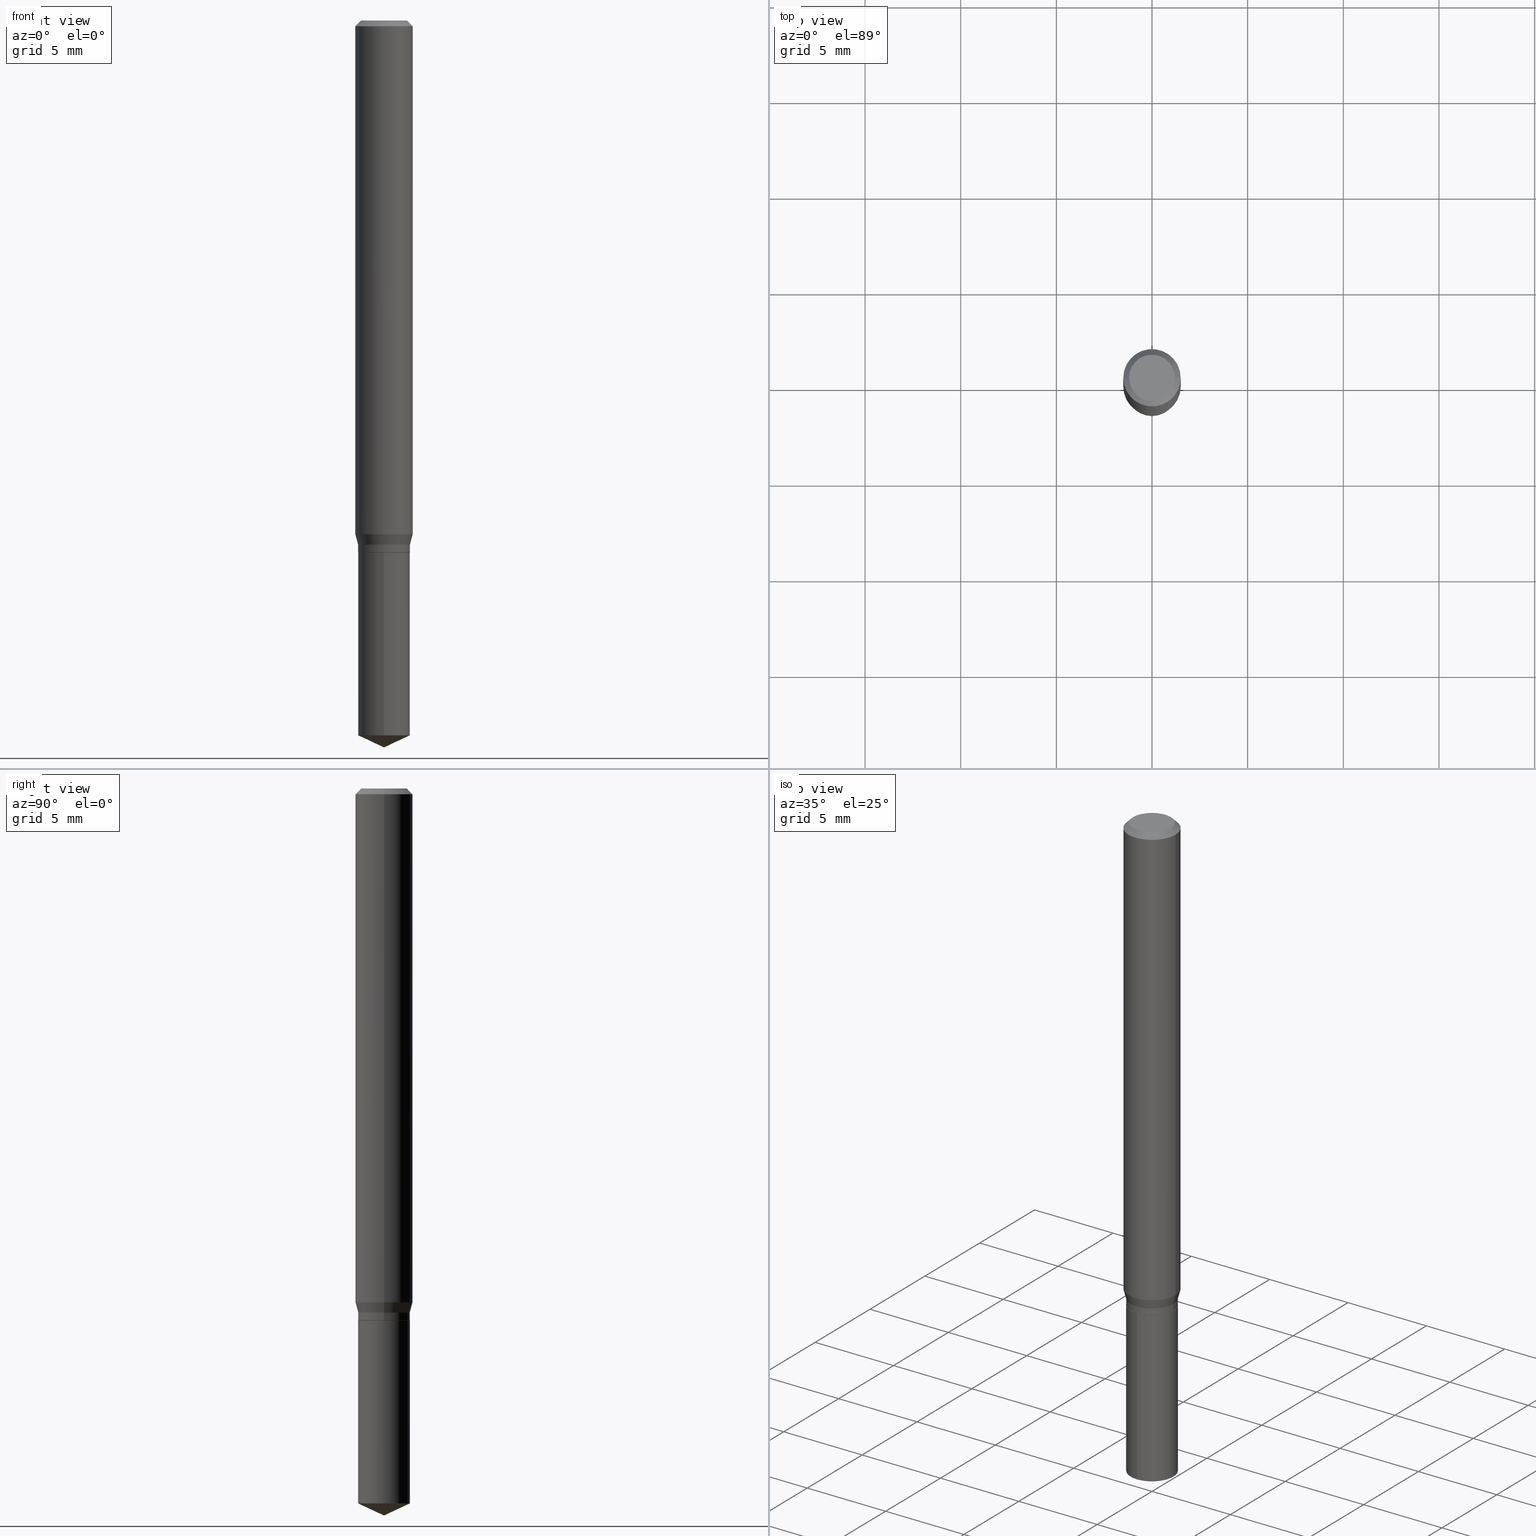
[diagram: canonical four-view strip — front | top / right | iso, engineering-drawing reading convention]
A machine part, canonical four-view strip (front | top / right | iso — engineering-drawing reading convention). The complete STEP part file that produces these views, byte-faithful:
ISO-10303-21;
HEADER;
FILE_DESCRIPTION (( 'STEP AP203' ),
    '1' );
FILE_NAME ('08030.STEP',
    '2024-04-24T09:21:03',
    ( '' ),
    ( '' ),
    'SwSTEP 2.0',
    'SolidWorks 2023',
    '' );
FILE_SCHEMA (( 'CONFIG_CONTROL_DESIGN' ));
ENDSEC;

DATA;
#1 = LINE ( 'NONE', #45, #212 ) ;
#2 = EDGE_CURVE ( 'NONE', #93, #392, #249, .T. ) ;
#3 = PERSON_AND_ORGANIZATION ( #308, #431 ) ;
#4 = LINE ( 'NONE', #183, #369 ) ;
#5 = AXIS2_PLACEMENT_3D ( 'NONE', #222, #178, #218 ) ;
#6 = CALENDAR_DATE ( 2024, 24, 4 ) ;
#7 = DIRECTION ( 'NONE',  ( -2.445468806185136597E-29, 3.491481338843145583E-15, 1.000000000000000000 ) ) ;
#8 = VERTEX_POINT ( 'NONE', #19 ) ;
#9 = APPROVAL_ROLE ( '' ) ;
#10 = CARTESIAN_POINT ( 'NONE',  ( 3.790745495280494029E-16, 0.05334999999999485987, -1.471222486437431476 ) ) ;
#11 = CARTESIAN_POINT ( 'NONE',  ( 0.000000000000000000, 0.000000000000000000, 0.000000000000000000 ) ) ;
#12 = DIRECTION ( 'NONE',  ( -6.982962677686265133E-15, -1.000000000000000000, 2.560307397998372008E-15 ) ) ;
#13 = ADVANCED_FACE ( 'NONE', ( #235 ), #50, .T. ) ;
#14 = AXIS2_PLACEMENT_3D ( 'NONE', #197, #355, #160 ) ;
#15 = DIRECTION ( 'NONE',  ( -2.445468806185136597E-29, 3.491481338843145583E-15, 1.000000000000000000 ) ) ;
#16 = AXIS2_PLACEMENT_3D ( 'NONE', #367, #170, #321 ) ;
#17 = AXIS2_PLACEMENT_3D ( 'NONE', #201, #283, #206 ) ;
#18 = CARTESIAN_POINT ( 'NONE',  ( 2.637438107470669995E-29, -3.765562623942332293E-15, -1.078500000000000014 ) ) ;
#19 = CARTESIAN_POINT ( 'NONE',  ( 0.05904999999999999832, -4.535783407291118600E-16, -0.01181000000000007044 ) ) ;
#20 = CC_DESIGN_PERSON_AND_ORGANIZATION_ASSIGNMENT ( #314, #305, ( #404 ) ) ;
#21 = PLANE ( 'NONE',  #219 ) ;
#22 = EDGE_LOOP ( 'NONE', ( #394, #117, #424, #457 ) ) ;
#23 = CIRCLE ( 'NONE', #113, 0.05285000000000000114 ) ;
#24 = VECTOR ( 'NONE', #28, 39.37007874015748143 ) ;
#25 =( NAMED_UNIT ( * ) PLANE_ANGLE_UNIT ( ) SI_UNIT ( $, .RADIAN. ) );
#26 = CARTESIAN_POINT ( 'NONE',  ( 2.888098660104663766E-31, -4.123439461173779647E-17, -0.01181000000000007044 ) ) ;
#27 = ORIENTED_EDGE ( 'NONE', *, *, #338, .F. ) ;
#28 = DIRECTION ( 'NONE',  ( -2.445468806185136877E-29, 3.491481338843145188E-15, 1.000000000000000000 ) ) ;
#29 = DIRECTION ( 'NONE',  ( -2.445458899330790108E-29, 3.491495526022433205E-15, 1.000000000000000000 ) ) ;
#30 = DATE_AND_TIME ( #171, #114 ) ;
#31 = EDGE_CURVE ( 'NONE', #309, #8, #343, .T. ) ;
#32 = CYLINDRICAL_SURFACE ( 'NONE', #279, 0.05905000000000006771 ) ;
#33 = PRODUCT ( '08030', '08030', '', ( #348 ) ) ;
#34 = ORIENTED_EDGE ( 'NONE', *, *, #73, .T. ) ;
#35 = CC_DESIGN_APPROVAL ( #87, ( #374 ) ) ;
#36 = DIRECTION ( 'NONE',  ( -2.445468806185136597E-29, 3.491481338843145583E-15, 1.000000000000000000 ) ) ;
#37 = EDGE_CURVE ( 'NONE', #115, #93, #274, .T. ) ;
#38 = EDGE_CURVE ( 'NONE', #359, #228, #258, .T. ) ;
#39 = DIRECTION ( 'NONE',  ( -1.000000000000000000, 6.982962677686266711E-15, 0.000000000000000000 ) ) ;
#40 = VECTOR ( 'NONE', #397, 39.37007874015748143 ) ;
#41 =( GEOMETRIC_REPRESENTATION_CONTEXT ( 3 ) GLOBAL_UNCERTAINTY_ASSIGNED_CONTEXT ( ( #446 ) ) GLOBAL_UNIT_ASSIGNED_CONTEXT ( ( #89, #25, #242 ) ) REPRESENTATION_CONTEXT ( 'NONE', 'WORKASPACE' ) );
#42 = CARTESIAN_POINT ( 'NONE',  ( -0.05904999999999999832, -1.446686424422506583E-15, -0.01181000000000007044 ) ) ;
#43 = ADVANCED_FACE ( 'NONE', ( #316 ), #224, .T. ) ;
#44 = APPROVAL_ROLE ( '' ) ;
#45 = CARTESIAN_POINT ( 'NONE',  ( 0.05285000000000000114, -4.190475902879542038E-15, -1.094500000000000028 ) ) ;
#46 = CIRCLE ( 'NONE', #174, 0.05904999999999999832 ) ;
#47 = FACE_OUTER_BOUND ( 'NONE', #138, .T. ) ;
#48 = AXIS2_PLACEMENT_3D ( 'NONE', #267, #7, #271 ) ;
#49 = DIRECTION ( 'NONE',  ( -2.445468806185136597E-29, 3.491481338843145583E-15, 1.000000000000000000 ) ) ;
#50 = CYLINDRICAL_SURFACE ( 'NONE', #412, 0.05335000000000000159 ) ;
#51 = VERTEX_POINT ( 'NONE', #65 ) ;
#52 = DIRECTION ( 'NONE',  ( -2.445468806185136597E-29, 3.491481338843145583E-15, 1.000000000000000000 ) ) ;
#53 = APPLICATION_CONTEXT ( 'configuration controlled 3d designs of mechanical parts and assemblies' ) ;
#54 = EDGE_LOOP ( 'NONE', ( #121, #386, #130, #167 ) ) ;
#55 = DIRECTION ( 'NONE',  ( -0.2588190451025213501, 5.211531920934551042E-15, 0.9659258262890682012 ) ) ;
#56 = CONICAL_SURFACE ( 'NONE', #488, 0.05904999999999999832, 0.7853981633974452814 ) ;
#57 = DATE_AND_TIME ( #479, #281 ) ;
#58 = CARTESIAN_POINT ( 'NONE',  ( 2.675342873966538993E-29, -3.819680584694400481E-15, -1.093999999999999861 ) ) ;
#59 = ADVANCED_FACE ( 'NONE', ( #176 ), #486, .T. ) ;
#60 = CARTESIAN_POINT ( 'NONE',  ( 0.000000000000000000, 0.000000000000000000, 0.000000000000000000 ) ) ;
#61 = ORIENTED_EDGE ( 'NONE', *, *, #196, .F. ) ;
#62 = CYLINDRICAL_SURFACE ( 'NONE', #450, 0.05335000000000000159 ) ;
#63 = AXIS2_PLACEMENT_3D ( 'NONE', #391, #461, #312 ) ;
#64 = AXIS2_PLACEMENT_3D ( 'NONE', #131, #440, #436 ) ;
#65 = CARTESIAN_POINT ( 'NONE',  ( 3.790745495280493536E-16, 0.05334999999999616438, -1.094500000000000028 ) ) ;
#66 = ORIENTED_EDGE ( 'NONE', *, *, #38, .T. ) ;
#67 = CARTESIAN_POINT ( 'NONE',  ( 0.05335000000000000159, -3.725410588545623708E-16, 2.601440309887131706E-30 ) ) ;
#68 = ORIENTED_EDGE ( 'NONE', *, *, #411, .T. ) ;
#69 = DIRECTION ( 'NONE',  ( -2.445468806185136597E-29, 3.491481338843145583E-15, 1.000000000000000000 ) ) ;
#70 = EDGE_LOOP ( 'NONE', ( #349, #470, #177, #318 ) ) ;
#71 = CLOSED_SHELL ( 'NONE', ( #173, #43, #151, #59, #13, #94, #347, #146, #295, #301, #275, #185 ) ) ;
#72 = AXIS2_PLACEMENT_3D ( 'NONE', #437, #444, #172 ) ;
#73 = EDGE_CURVE ( 'NONE', #8, #309, #46, .T. ) ;
#74 = DIRECTION ( 'NONE',  ( 2.445468806185136597E-29, -3.491481338843145583E-15, -1.000000000000000000 ) ) ;
#75 = FACE_OUTER_BOUND ( 'NONE', #288, .T. ) ;
#76 = CARTESIAN_POINT ( 'NONE',  ( -3.725410588545263790E-16, -0.05335000000000515025, -1.471222486437430810 ) ) ;
#77 = APPROVAL_STATUS ( 'not_yet_approved' ) ;
#78 = CARTESIAN_POINT ( 'NONE',  ( 2.676565608369631794E-29, -3.821426325363822773E-15, -1.094499999999999806 ) ) ;
#79 = CARTESIAN_POINT ( 'NONE',  ( 0.000000000000000000, 0.000000000000000000, 0.000000000000000000 ) ) ;
#80 = AXIS2_PLACEMENT_3D ( 'NONE', #304, #52, #384 ) ;
#81 = ORIENTED_EDGE ( 'NONE', *, *, #99, .T. ) ;
#82 = CC_DESIGN_PERSON_AND_ORGANIZATION_ASSIGNMENT ( #266, #415, ( #374 ) ) ;
#83 = COORDINATED_UNIVERSAL_TIME_OFFSET ( 5, 0, .BEHIND. ) ;
#84 = CARTESIAN_POINT ( 'NONE',  ( -3.725410588545355495E-16, -0.05335000000000382492, -1.094499999999999806 ) ) ;
#85 = DIRECTION ( 'NONE',  ( -0.7071067811865453523, 2.468850131082234184E-15, -0.7071067811865496822 ) ) ;
#86 = ORIENTED_EDGE ( 'NONE', *, *, #38, .F. ) ;
#87 = APPROVAL ( #248, 'UNSPECIFIED' ) ;
#88 = ORIENTED_EDGE ( 'NONE', *, *, #460, .F. ) ;
#89 =( CONVERSION_BASED_UNIT ( 'INCH', #280 ) LENGTH_UNIT ( ) NAMED_UNIT ( #162 ) );
#90 = DIRECTION ( 'NONE',  ( -2.445468806185136597E-29, 3.491481338843145583E-15, 1.000000000000000000 ) ) ;
#91 = ORIENTED_EDGE ( 'NONE', *, *, #99, .F. ) ;
#92 = DIRECTION ( 'NONE',  ( 1.000000000000000000, -6.982962677686267499E-15, 4.876176775795935793E-29 ) ) ;
#93 = VERTEX_POINT ( 'NONE', #323 ) ;
#94 = ADVANCED_FACE ( 'NONE', ( #366 ), #475, .T. ) ;
#95 = AXIS2_PLACEMENT_3D ( 'NONE', #299, #265, #448 ) ;
#96 = CC_DESIGN_APPROVAL ( #108, ( #408 ) ) ;
#97 = FACE_OUTER_BOUND ( 'NONE', #236, .T. ) ;
#98 = EDGE_LOOP ( 'NONE', ( #421, #190, #81, #241 ) ) ;
#99 = EDGE_CURVE ( 'NONE', #209, #445, #333, .T. ) ;
#100 = LINE ( 'NONE', #211, #413 ) ;
#101 = EDGE_CURVE ( 'NONE', #332, #51, #100, .T. ) ;
#102 = AXIS2_PLACEMENT_3D ( 'NONE', #483, #330, #140 ) ;
#103 = CARTESIAN_POINT ( 'NONE',  ( 2.675342873966538993E-29, -3.819680584694400481E-15, -1.093999999999999861 ) ) ;
#104 = EDGE_CURVE ( 'NONE', #240, #332, #285, .T. ) ;
#105 = PERSON_AND_ORGANIZATION ( #308, #431 ) ;
#106 = ADVANCED_FACE ( 'NONE', ( #208 ), #21, .F. ) ;
#107 = CARTESIAN_POINT ( 'NONE',  ( 3.597824965406070746E-29, -5.136751201312159950E-15, -1.471222486437431254 ) ) ;
#108 = APPROVAL ( #390, 'UNSPECIFIED' ) ;
#109 = ORIENTED_EDGE ( 'NONE', *, *, #354, .F. ) ;
#110 = ORIENTED_EDGE ( 'NONE', *, *, #417, .T. ) ;
#111 = PERSON_AND_ORGANIZATION_ROLE ( 'creator' ) ;
#112 = DIRECTION ( 'NONE',  ( -2.445458899330790108E-29, 3.491495526022433205E-15, 1.000000000000000000 ) ) ;
#113 = AXIS2_PLACEMENT_3D ( 'NONE', #353, #120, #227 ) ;
#114 = LOCAL_TIME ( 5, 21, 3.000000000000000000, #399 ) ;
#115 = VERTEX_POINT ( 'NONE', #164 ) ;
#116 = CARTESIAN_POINT ( 'NONE',  ( -0.05335000000000000159, 3.790745495280134604E-16, -2.624251870650992415E-30 ) ) ;
#117 = ORIENTED_EDGE ( 'NONE', *, *, #255, .T. ) ;
#118 = ADVANCED_FACE ( 'NONE', ( #126 ), #62, .T. ) ;
#119 = PERSON_AND_ORGANIZATION_ROLE ( 'design_supplier' ) ;
#120 = DIRECTION ( 'NONE',  ( -2.445468806185136597E-29, 3.491481338843145583E-15, 1.000000000000000000 ) ) ;
#121 = ORIENTED_EDGE ( 'NONE', *, *, #354, .T. ) ;
#122 = ORIENTED_EDGE ( 'NONE', *, *, #203, .T. ) ;
#123 = CONICAL_SURFACE ( 'NONE', #430, 0.05285000000000000114, 0.7853981633972775267 ) ;
#124 = APPROVAL_PERSON_ORGANIZATION ( #234, #473, #9 ) ;
#125 = EDGE_LOOP ( 'NONE', ( #86, #389, #34, #478 ) ) ;
#126 = FACE_OUTER_BOUND ( 'NONE', #292, .T. ) ;
#127 = PERSON_AND_ORGANIZATION ( #308, #431 ) ;
#128 = CC_DESIGN_PERSON_AND_ORGANIZATION_ASSIGNMENT ( #105, #111, ( #408 ) ) ;
#129 = DIRECTION ( 'NONE',  ( -2.445468806185136597E-29, 3.491481338843145583E-15, 1.000000000000000000 ) ) ;
#130 = ORIENTED_EDGE ( 'NONE', *, *, #477, .F. ) ;
#131 = CARTESIAN_POINT ( 'NONE',  ( 8.265746106709734507E-48, -1.180129479067563789E-33, -3.380025165646692144E-19 ) ) ;
#132 = CLOSED_SHELL ( 'NONE', ( #435, #362, #300, #118, #106 ) ) ;
#133 = CIRCLE ( 'NONE', #149, 0.05335000000000000159 ) ;
#134 = ORIENTED_EDGE ( 'NONE', *, *, #340, .F. ) ;
#135 = CIRCLE ( 'NONE', #214, 0.05335000000000000159 ) ;
#136 = DIRECTION ( 'NONE',  ( 6.439704144417044553E-15, 0.9063077870366541555, 0.4226182617406904485 ) ) ;
#137 = FACE_OUTER_BOUND ( 'NONE', #432, .T. ) ;
#138 = EDGE_LOOP ( 'NONE', ( #207, #193, #169, #396 ) ) ;
#139 = EDGE_CURVE ( 'NONE', #294, #51, #194, .T. ) ;
#140 = DIRECTION ( 'NONE',  ( 1.000000000000000000, -6.982962677686267499E-15, 0.000000000000000000 ) ) ;
#141 = ORIENTED_EDGE ( 'NONE', *, *, #196, .T. ) ;
#142 = FACE_OUTER_BOUND ( 'NONE', #70, .T. ) ;
#143 = VECTOR ( 'NONE', #55, 39.37007874015747433 ) ;
#144 = AXIS2_PLACEMENT_3D ( 'NONE', #78, #231, #187 ) ;
#145 = PLANE ( 'NONE',  #95 ) ;
#146 = ADVANCED_FACE ( 'NONE', ( #326 ), #32, .T. ) ;
#147 = LINE ( 'NONE', #84, #259 ) ;
#148 = EDGE_CURVE ( 'NONE', #228, #359, #350, .T. ) ;
#149 = AXIS2_PLACEMENT_3D ( 'NONE', #376, #257, #407 ) ;
#150 = LOCAL_TIME ( 5, 21, 3.000000000000000000, #226 ) ;
#151 = ADVANCED_FACE ( 'NONE', ( #97 ), #401, .T. ) ;
#152 = DATE_AND_TIME ( #6, #439 ) ;
#153 = APPROVAL_DATE_TIME ( #419, #473 ) ;
#154 = CARTESIAN_POINT ( 'NONE',  ( -9.261924752013118283E-28, 1.322368428517963298E-13, 37.87397874015748300 ) ) ;
#155 = DIRECTION ( 'NONE',  ( -2.445468806185136597E-29, 3.491481338843145583E-15, 1.000000000000000000 ) ) ;
#156 = ORIENTED_EDGE ( 'NONE', *, *, #289, .T. ) ;
#157 = CARTESIAN_POINT ( 'NONE',  ( 0.05335000000000000159, -4.138103682796894565E-15, -1.078500000000000014 ) ) ;
#158 = VECTOR ( 'NONE', #428, 39.37007874015748143 ) ;
#159 = AXIS2_PLACEMENT_3D ( 'NONE', #79, #191, #379 ) ;
#160 = DIRECTION ( 'NONE',  ( 1.000000000000000000, -6.982962677686266711E-15, 4.876185090822587894E-29 ) ) ;
#161 = EDGE_LOOP ( 'NONE', ( #68, #251, #109, #91 ) ) ;
#162 = DIMENSIONAL_EXPONENTS ( 1.000000000000000000, 0.000000000000000000, 0.000000000000000000, 0.000000000000000000, 0.000000000000000000, 0.000000000000000000, 0.000000000000000000 ) ;
#163 = ORIENTED_EDGE ( 'NONE', *, *, #2, .F. ) ;
#164 = CARTESIAN_POINT ( 'NONE',  ( -0.05335000000000000159, -3.413547054790353271E-15, -1.078500000000000014 ) ) ;
#165 = AXIS2_PLACEMENT_3D ( 'NONE', #490, #372, #335 ) ;
#166 = APPROVAL_PERSON_ORGANIZATION ( #127, #87, #325 ) ;
#167 = ORIENTED_EDGE ( 'NONE', *, *, #289, .F. ) ;
#168 = CC_DESIGN_PERSON_AND_ORGANIZATION_ASSIGNMENT ( #352, #119, ( #408 ) ) ;
#169 = ORIENTED_EDGE ( 'NONE', *, *, #139, .F. ) ;
#170 = DIRECTION ( 'NONE',  ( -2.445458899330790108E-29, 3.491495526022433205E-15, 1.000000000000000000 ) ) ;
#171 = CALENDAR_DATE ( 2024, 24, 4 ) ;
#172 = DIRECTION ( 'NONE',  ( 1.000000000000000000, -6.982962677686268288E-15, 0.000000000000000000 ) ) ;
#173 = ADVANCED_FACE ( 'NONE', ( #256 ), #447, .T. ) ;
#174 = AXIS2_PLACEMENT_3D ( 'NONE', #26, #69, #291 ) ;
#175 = VERTEX_POINT ( 'NONE', #481 ) ;
#176 = FACE_OUTER_BOUND ( 'NONE', #54, .T. ) ;
#177 = ORIENTED_EDGE ( 'NONE', *, *, #371, .T. ) ;
#178 = DIRECTION ( 'NONE',  ( -2.438088387897960049E-29, 3.491481338843145188E-15, 1.000000000000000000 ) ) ;
#179 = FACE_OUTER_BOUND ( 'NONE', #245, .T. ) ;
#180 = AXIS2_PLACEMENT_3D ( 'NONE', #268, #15, #385 ) ;
#181 = AXIS2_PLACEMENT_3D ( 'NONE', #18, #49, #315 ) ;
#182 = CARTESIAN_POINT ( 'NONE',  ( -0.05905000000000006771, 4.195754854663396409E-16, -2.904631170795525045E-30 ) ) ;
#183 = CARTESIAN_POINT ( 'NONE',  ( 3.658651059288795076E-29, -5.223626456482161457E-15, -1.496099999999999985 ) ) ;
#184 = DIRECTION ( 'NONE',  ( 1.000000000000000000, -6.982962677686268288E-15, 0.000000000000000000 ) ) ;
#185 = ADVANCED_FACE ( 'NONE', ( #137 ), #123, .T. ) ;
#186 = PERSON_AND_ORGANIZATION_ROLE ( 'design_owner' ) ;
#187 = DIRECTION ( 'NONE',  ( -6.982962677686265133E-15, -1.000000000000000000, 2.560307397998372008E-15 ) ) ;
#188 = ORIENTED_EDGE ( 'NONE', *, *, #255, .F. ) ;
#189 = DIRECTION ( 'NONE',  ( -2.445458899330790108E-29, 3.491495526022433205E-15, 1.000000000000000000 ) ) ;
#190 = ORIENTED_EDGE ( 'NONE', *, *, #278, .T. ) ;
#191 = DIRECTION ( 'NONE',  ( 0.000000000000000000, 0.000000000000000000, 1.000000000000000000 ) ) ;
#192 = DIRECTION ( 'NONE',  ( -2.445458899330790108E-29, 3.491495526022433205E-15, 1.000000000000000000 ) ) ;
#193 = ORIENTED_EDGE ( 'NONE', *, *, #101, .T. ) ;
#194 = CIRCLE ( 'NONE', #16, 0.05335000000000000159 ) ;
#195 = FACE_OUTER_BOUND ( 'NONE', #233, .T. ) ;
#196 = EDGE_CURVE ( 'NONE', #93, #309, #395, .T. ) ;
#197 = CARTESIAN_POINT ( 'NONE',  ( 8.265746106709734507E-48, -1.180129479067563789E-33, -3.380025165646692144E-19 ) ) ;
#198 = EDGE_LOOP ( 'NONE', ( #61, #402, #232, #269 ) ) ;
#199 = APPROVAL_DATE_TIME ( #57, #87 ) ;
#200 = ORIENTED_EDGE ( 'NONE', *, *, #243, .T. ) ;
#201 = CARTESIAN_POINT ( 'NONE',  ( 3.597824965406070746E-29, -5.136751201312159950E-15, -1.471222486437431254 ) ) ;
#202 = ORIENTED_EDGE ( 'NONE', *, *, #101, .F. ) ;
#203 = EDGE_CURVE ( 'NONE', #482, #240, #4, .T. ) ;
#204 = CARTESIAN_POINT ( 'NONE',  ( 0.000000000000000000, 0.000000000000000000, 0.000000000000000000 ) ) ;
#205 = VECTOR ( 'NONE', #459, 39.37007874015748143 ) ;
#206 = DIRECTION ( 'NONE',  ( -6.982962677686265133E-15, -1.000000000000000000, 5.120614795996744016E-15 ) ) ;
#207 = ORIENTED_EDGE ( 'NONE', *, *, #104, .T. ) ;
#208 = FACE_OUTER_BOUND ( 'NONE', #456, .T. ) ;
#209 = VERTEX_POINT ( 'NONE', #339 ) ;
#210 =( LENGTH_UNIT ( ) NAMED_UNIT ( * ) SI_UNIT ( $, .METRE. ) );
#211 = CARTESIAN_POINT ( 'NONE',  ( 3.790745495280401338E-16, 0.05334999999999617826, -1.094500000000000028 ) ) ;
#212 = VECTOR ( 'NONE', #409, 39.37007874015748143 ) ;
#213 = ORIENTED_EDGE ( 'NONE', *, *, #139, .T. ) ;
#214 = AXIS2_PLACEMENT_3D ( 'NONE', #387, #192, #12 ) ;
#215 = CARTESIAN_POINT ( 'NONE',  ( -0.04724000000000000421, 3.504923541997677355E-16, -3.380025165670481712E-19 ) ) ;
#216 = DIRECTION ( 'NONE',  ( -6.328713451373389100E-15, -0.9063077870366512689, 0.4226182617406967768 ) ) ;
#217 = ADVANCED_BREP_SHAPE_REPRESENTATION ( '08030', ( #414, #254, #159 ), #41 ) ;
#218 = DIRECTION ( 'NONE',  ( 1.000000000000000000, -6.982962677686265922E-15, 4.876176775795935793E-29 ) ) ;
#219 = AXIS2_PLACEMENT_3D ( 'NONE', #370, #250, #398 ) ;
#220 = CIRCLE ( 'NONE', #422, 0.05905000000000013016 ) ;
#221 = CARTESIAN_POINT ( 'NONE',  ( 2.888098660104663766E-31, -4.123439461173779647E-17, -0.01181000000000007044 ) ) ;
#222 = CARTESIAN_POINT ( 'NONE',  ( 7.012475686570645720E-30, -6.650194186352977832E-15, -1.094500000000000028 ) ) ;
#223 = LINE ( 'NONE', #345, #158 ) ;
#224 = CONICAL_SURFACE ( 'NONE', #420, 0.05904999999999999832, 0.7853981633974452814 ) ;
#225 = CIRCLE ( 'NONE', #382, 0.05335000000000000159 ) ;
#226 = COORDINATED_UNIVERSAL_TIME_OFFSET ( 5, 0, .BEHIND. ) ;
#227 = DIRECTION ( 'NONE',  ( 1.000000000000000000, -6.982962677686267499E-15, 0.000000000000000000 ) ) ;
#228 = VERTEX_POINT ( 'NONE', #215 ) ;
#229 = ORIENTED_EDGE ( 'NONE', *, *, #400, .F. ) ;
#230 = CALENDAR_DATE ( 2024, 24, 4 ) ;
#231 = DIRECTION ( 'NONE',  ( -2.445458899330790108E-29, 3.491495526022433205E-15, 1.000000000000000000 ) ) ;
#232 = ORIENTED_EDGE ( 'NONE', *, *, #400, .T. ) ;
#233 = EDGE_LOOP ( 'NONE', ( #441, #200, #156, #163 ) ) ;
#234 = PERSON_AND_ORGANIZATION ( #308, #431 ) ;
#235 = FACE_OUTER_BOUND ( 'NONE', #161, .T. ) ;
#236 = EDGE_LOOP ( 'NONE', ( #433, #141, #272, #229 ) ) ;
#237 = AXIS2_PLACEMENT_3D ( 'NONE', #60, #129, #92 ) ;
#238 = DIRECTION ( 'NONE',  ( -6.982962677686266711E-15, -1.000000000000000000, 3.520397390770410877E-15 ) ) ;
#239 = VECTOR ( 'NONE', #136, 39.37007874015748143 ) ;
#240 = VERTEX_POINT ( 'NONE', #76 ) ;
#241 = ORIENTED_EDGE ( 'NONE', *, *, #243, .F. ) ;
#242 =( NAMED_UNIT ( * ) SI_UNIT ( $, .STERADIAN. ) SOLID_ANGLE_UNIT ( ) );
#243 = EDGE_CURVE ( 'NONE', #115, #445, #133, .T. ) ;
#244 = DIRECTION ( 'NONE',  ( 1.000000000000000000, -6.982962677686267499E-15, 0.000000000000000000 ) ) ;
#245 = EDGE_LOOP ( 'NONE', ( #88, #122, #346 ) ) ;
#246 = DIRECTION ( 'NONE',  ( 1.000000000000000000, -6.982962677686265133E-15, 0.000000000000000000 ) ) ;
#247 = DIRECTION ( 'NONE',  ( -1.000000000000000000, 6.982962677686266711E-15, 0.000000000000000000 ) ) ;
#248 = APPROVAL_STATUS ( 'not_yet_approved' ) ;
#249 = CIRCLE ( 'NONE', #180, 0.05905000000000013016 ) ;
#250 = DIRECTION ( 'NONE',  ( 2.445458899330789267E-29, -3.491495526022433599E-15, -1.000000000000000000 ) ) ;
#251 = ORIENTED_EDGE ( 'NONE', *, *, #452, .T. ) ;
#252 = APPLICATION_CONTEXT ( 'configuration controlled 3d designs of mechanical parts and assemblies' ) ;
#253 = DIRECTION ( 'NONE',  ( 2.445468806185136597E-29, -3.491481338843145583E-15, -1.000000000000000000 ) ) ;
#254 = MANIFOLD_SOLID_BREP ( 'Body-Move/Copy2[2]', #71 ) ;
#255 = EDGE_CURVE ( 'NONE', #175, #484, #337, .T. ) ;
#256 = FACE_OUTER_BOUND ( 'NONE', #22, .T. ) ;
#257 = DIRECTION ( 'NONE',  ( -2.445468806185136597E-29, 3.491481338843145583E-15, 1.000000000000000000 ) ) ;
#258 = CIRCLE ( 'NONE', #14, 0.04724000000000000421 ) ;
#259 = VECTOR ( 'NONE', #273, 39.37007874015748143 ) ;
#260 = PLANE ( 'NONE',  #5 ) ;
#261 = EDGE_CURVE ( 'NONE', #360, #209, #1, .T. ) ;
#262 = DIRECTION ( 'NONE',  ( 0.2588190451025213501, 1.565188264969621968E-15, 0.9659258262890682012 ) ) ;
#263 = DIRECTION ( 'NONE',  ( -0.7071067811864267805, 7.493145998869918709E-15, 0.7071067811866682540 ) ) ;
#264 = AXIS2_PLACEMENT_3D ( 'NONE', #204, #36, #361 ) ;
#265 = DIRECTION ( 'NONE',  ( 2.438088387897960049E-29, -3.491481338843145188E-15, -1.000000000000000000 ) ) ;
#266 = PERSON_AND_ORGANIZATION ( #308, #431 ) ;
#267 = CARTESIAN_POINT ( 'NONE',  ( 2.676565608369632355E-29, -3.821426325363822773E-15, -1.094500000000000028 ) ) ;
#268 = CARTESIAN_POINT ( 'NONE',  ( 2.585416408622524463E-29, -3.691289425165956001E-15, -1.057227310396857023 ) ) ;
#269 = ORIENTED_EDGE ( 'NONE', *, *, #31, .F. ) ;
#270 = CONICAL_SURFACE ( 'NONE', #80, 0.05335000000000000159, 0.2617993877991500740 ) ;
#271 = DIRECTION ( 'NONE',  ( 1.000000000000000000, -6.982962677686267499E-15, 0.000000000000000000 ) ) ;
#272 = ORIENTED_EDGE ( 'NONE', *, *, #73, .F. ) ;
#273 = DIRECTION ( 'NONE',  ( -2.445458899330790108E-29, 3.491495526022433599E-15, 1.000000000000000000 ) ) ;
#274 = LINE ( 'NONE', #425, #143 ) ;
#275 = ADVANCED_FACE ( 'NONE', ( #75 ), #260, .F. ) ;
#276 = CARTESIAN_POINT ( 'NONE',  ( 0.05905000000000013016, -4.103633371283330921E-15, -1.057227310396857023 ) ) ;
#277 = CARTESIAN_POINT ( 'NONE',  ( 2.888098660104663766E-31, -4.123439461173779647E-17, -0.01181000000000007044 ) ) ;
#278 = EDGE_CURVE ( 'NONE', #484, #209, #225, .T. ) ;
#279 = AXIS2_PLACEMENT_3D ( 'NONE', #476, #474, #363 ) ;
#280 = LENGTH_MEASURE_WITH_UNIT ( LENGTH_MEASURE( 0.02539999999999999897 ), #210 );
#281 = LOCAL_TIME ( 5, 21, 3.000000000000000000, #328 ) ;
#282 = DIRECTION ( 'NONE',  ( -2.445468806185136597E-29, 3.491481338843145583E-15, 1.000000000000000000 ) ) ;
#283 = DIRECTION ( 'NONE',  ( -2.445458899330790108E-29, 3.491495526022433205E-15, 1.000000000000000000 ) ) ;
#284 = DIRECTION ( 'NONE',  ( -2.445458899330790108E-29, 3.491495526022433599E-15, 1.000000000000000000 ) ) ;
#285 = CIRCLE ( 'NONE', #17, 0.05335000000000000159 ) ;
#286 = DIRECTION ( 'NONE',  ( -6.982962677686265133E-15, -1.000000000000000000, 2.560307397998372008E-15 ) ) ;
#287 = LOCAL_TIME ( 5, 21, 3.000000000000000000, #83 ) ;
#288 = EDGE_LOOP ( 'NONE', ( #27, #134 ) ) ;
#289 = EDGE_CURVE ( 'NONE', #445, #392, #334, .T. ) ;
#290 = CARTESIAN_POINT ( 'NONE',  ( 2.585416408622524463E-29, -3.691289425165956001E-15, -1.057227310396857023 ) ) ;
#291 = DIRECTION ( 'NONE',  ( 1.000000000000000000, -6.982962677686266711E-15, 0.000000000000000000 ) ) ;
#292 = EDGE_LOOP ( 'NONE', ( #202, #110, #429, #327 ) ) ;
#293 = CARTESIAN_POINT ( 'NONE',  ( 2.676565608369632355E-29, -3.821426325363822773E-15, -1.094500000000000028 ) ) ;
#294 = VERTEX_POINT ( 'NONE', #485 ) ;
#295 = ADVANCED_FACE ( 'NONE', ( #142 ), #56, .T. ) ;
#296 = DIRECTION ( 'NONE',  ( -2.445468806185136877E-29, 3.491481338843145188E-15, 1.000000000000000000 ) ) ;
#297 = CIRCLE ( 'NONE', #181, 0.05335000000000000159 ) ;
#298 = CC_DESIGN_SECURITY_CLASSIFICATION ( #374, ( #408 ) ) ;
#299 = CARTESIAN_POINT ( 'NONE',  ( 4.132873053354867254E-48, -5.900647395337818946E-34, -1.690012582823346072E-19 ) ) ;
#300 = ADVANCED_FACE ( 'NONE', ( #179 ), #480, .T. ) ;
#301 = ADVANCED_FACE ( 'NONE', ( #410 ), #145, .F. ) ;
#302 = SECURITY_CLASSIFICATION_LEVEL ( 'unclassified' ) ;
#303 = DIRECTION ( 'NONE',  ( -2.445468806185136597E-29, 3.491481338843145583E-15, 1.000000000000000000 ) ) ;
#304 = CARTESIAN_POINT ( 'NONE',  ( 2.637438107470669995E-29, -3.765562623942332293E-15, -1.078500000000000014 ) ) ;
#305 = PERSON_AND_ORGANIZATION_ROLE ( 'creator' ) ;
#306 = FACE_OUTER_BOUND ( 'NONE', #426, .T. ) ;
#307 = DIRECTION ( 'NONE',  ( 1.000000000000000000, -6.982962677686267499E-15, 4.876176775795935793E-29 ) ) ;
#308 = PERSON ( 'UNSPECIFIED', 'UNSPECIFIED', 'UNSPECIFIED', ('UNSPECIFIED'), ('UNSPECIFIED'), ('UNSPECIFIED') ) ;
#309 = VERTEX_POINT ( 'NONE', #42 ) ;
#310 = VECTOR ( 'NONE', #85, 39.37007874015748143 ) ;
#311 = LINE ( 'NONE', #116, #24 ) ;
#312 = DIRECTION ( 'NONE',  ( 1.000000000000000000, -6.982962677686266711E-15, 0.000000000000000000 ) ) ;
#313 = EDGE_CURVE ( 'NONE', #240, #294, #147, .T. ) ;
#314 = PERSON_AND_ORGANIZATION ( #308, #431 ) ;
#315 = DIRECTION ( 'NONE',  ( 1.000000000000000000, -6.982962677686268288E-15, 0.000000000000000000 ) ) ;
#316 = FACE_OUTER_BOUND ( 'NONE', #125, .T. ) ;
#317 = PRODUCT_RELATED_PRODUCT_CATEGORY ( 'detail', '', ( #33 ) ) ;
#318 = ORIENTED_EDGE ( 'NONE', *, *, #31, .T. ) ;
#319 = DATE_TIME_ROLE ( 'classification_date' ) ;
#320 = CARTESIAN_POINT ( 'NONE',  ( 3.658672935554494692E-29, -5.223595400746700193E-15, -1.496099999999999985 ) ) ;
#321 = DIRECTION ( 'NONE',  ( -6.982962677686265133E-15, -1.000000000000000000, 2.560307397998372008E-15 ) ) ;
#322 = CARTESIAN_POINT ( 'NONE',  ( -0.05335000000000000159, -3.413547054790353271E-15, -1.093999999999999861 ) ) ;
#323 = CARTESIAN_POINT ( 'NONE',  ( -0.05905000000000013016, -3.271713939699615719E-15, -1.057227310396857023 ) ) ;
#324 = ORIENTED_EDGE ( 'NONE', *, *, #442, .T. ) ;
#325 = APPROVAL_ROLE ( '' ) ;
#326 = FACE_OUTER_BOUND ( 'NONE', #198, .T. ) ;
#327 = ORIENTED_EDGE ( 'NONE', *, *, #442, .F. ) ;
#328 = COORDINATED_UNIVERSAL_TIME_OFFSET ( 5, 0, .BEHIND. ) ;
#329 = CIRCLE ( 'NONE', #48, 0.05285000000000000114 ) ;
#330 = DIRECTION ( 'NONE',  ( -2.445468806185136597E-29, 3.491481338843145583E-15, 1.000000000000000000 ) ) ;
#331 = CC_DESIGN_APPROVAL ( #473, ( #404 ) ) ;
#332 = VERTEX_POINT ( 'NONE', #10 ) ;
#333 = LINE ( 'NONE', #67, #40 ) ;
#334 = LINE ( 'NONE', #342, #406 ) ;
#335 = DIRECTION ( 'NONE',  ( -6.982962677686266711E-15, -1.000000000000000000, 3.520397390770410877E-15 ) ) ;
#336 = VECTOR ( 'NONE', #263, 39.37007874015748143 ) ;
#337 = LINE ( 'NONE', #378, #336 ) ;
#338 = EDGE_CURVE ( 'NONE', #360, #175, #329, .T. ) ;
#339 = CARTESIAN_POINT ( 'NONE',  ( 0.05335000000000000159, -4.192221643548963542E-15, -1.093999999999999861 ) ) ;
#340 = EDGE_CURVE ( 'NONE', #175, #360, #23, .T. ) ;
#341 = APPLICATION_PROTOCOL_DEFINITION ( 'international standard', 'config_control_design', 1994, #53 ) ;
#342 = CARTESIAN_POINT ( 'NONE',  ( 0.05335000000000000159, -4.138103682796894565E-15, -1.078500000000000014 ) ) ;
#343 = CIRCLE ( 'NONE', #63, 0.05904999999999999832 ) ;
#344 = DATE_TIME_ROLE ( 'creation_date' ) ;
#345 = CARTESIAN_POINT ( 'NONE',  ( 0.05905000000000006771, -4.123439461173745257E-16, 2.879382386107503723E-30 ) ) ;
#346 = ORIENTED_EDGE ( 'NONE', *, *, #417, .F. ) ;
#347 = ADVANCED_FACE ( 'NONE', ( #195 ), #270, .T. ) ;
#348 = MECHANICAL_CONTEXT ( 'NONE', #252, 'mechanical' ) ;
#349 = ORIENTED_EDGE ( 'NONE', *, *, #365, .F. ) ;
#350 = CIRCLE ( 'NONE', #64, 0.04724000000000000421 ) ;
#351 = AXIS2_PLACEMENT_3D ( 'NONE', #107, #112, #423 ) ;
#352 = PERSON_AND_ORGANIZATION ( #308, #431 ) ;
#353 = CARTESIAN_POINT ( 'NONE',  ( 2.676565608369632355E-29, -3.821426325363822773E-15, -1.094500000000000028 ) ) ;
#354 = EDGE_CURVE ( 'NONE', #445, #115, #297, .T. ) ;
#355 = DIRECTION ( 'NONE',  ( -2.445468806185136597E-29, 3.491481338843145583E-15, 1.000000000000000000 ) ) ;
#356 = ORIENTED_EDGE ( 'NONE', *, *, #460, .T. ) ;
#357 = LINE ( 'NONE', #380, #205 ) ;
#358 = SHAPE_DEFINITION_REPRESENTATION ( #443, #217 ) ;
#359 = VERTEX_POINT ( 'NONE', #467 ) ;
#360 = VERTEX_POINT ( 'NONE', #455 ) ;
#361 = DIRECTION ( 'NONE',  ( 1.000000000000000000, -6.982962677686266711E-15, 4.876176775795936353E-29 ) ) ;
#362 = ADVANCED_FACE ( 'NONE', ( #306 ), #373, .T. ) ;
#363 = DIRECTION ( 'NONE',  ( 1.000000000000000000, -6.982962677686266711E-15, 4.876176775795936353E-29 ) ) ;
#364 = ORIENTED_EDGE ( 'NONE', *, *, #203, .F. ) ;
#365 = EDGE_CURVE ( 'NONE', #359, #8, #357, .T. ) ;
#366 = FACE_OUTER_BOUND ( 'NONE', #98, .T. ) ;
#367 = CARTESIAN_POINT ( 'NONE',  ( 2.676565608369631794E-29, -3.821426325363822773E-15, -1.094499999999999806 ) ) ;
#368 = ORIENTED_EDGE ( 'NONE', *, *, #261, .T. ) ;
#369 = VECTOR ( 'NONE', #216, 39.37007874015748143 ) ;
#370 = CARTESIAN_POINT ( 'NONE',  ( 2.676565608369631794E-29, -3.821426325363822773E-15, -1.094499999999999806 ) ) ;
#371 = EDGE_CURVE ( 'NONE', #228, #309, #466, .T. ) ;
#372 = DIRECTION ( 'NONE',  ( -2.445458899330790108E-29, 3.491495526022433205E-15, 1.000000000000000000 ) ) ;
#373 = CONICAL_SURFACE ( 'NONE', #462, 84.42940631927537254, 1.134464013796320669 ) ;
#374 = SECURITY_CLASSIFICATION ( '', '', #302 ) ;
#375 = CC_DESIGN_PERSON_AND_ORGANIZATION_ASSIGNMENT ( #377, #186, ( #33 ) ) ;
#376 = CARTESIAN_POINT ( 'NONE',  ( 2.637438107470669995E-29, -3.765562623942332293E-15, -1.078500000000000014 ) ) ;
#377 = PERSON_AND_ORGANIZATION ( #308, #431 ) ;
#378 = CARTESIAN_POINT ( 'NONE',  ( -0.05285000000000000114, -3.445904489514609768E-15, -1.094500000000000028 ) ) ;
#379 = DIRECTION ( 'NONE',  ( 1.000000000000000000, 0.000000000000000000, 0.000000000000000000 ) ) ;
#380 = CARTESIAN_POINT ( 'NONE',  ( 0.05904999999999999832, -4.463468013801466955E-16, -0.01181000000000007044 ) ) ;
#381 = CC_DESIGN_DATE_AND_TIME_ASSIGNMENT ( #453, #344, ( #404 ) ) ;
#382 = AXIS2_PLACEMENT_3D ( 'NONE', #103, #449, #184 ) ;
#383 = APPROVAL_DATE_TIME ( #152, #108 ) ;
#384 = DIRECTION ( 'NONE',  ( 1.000000000000000000, -6.982962677686268288E-15, 0.000000000000000000 ) ) ;
#385 = DIRECTION ( 'NONE',  ( 1.000000000000000000, -6.982962677686265133E-15, 0.000000000000000000 ) ) ;
#386 = ORIENTED_EDGE ( 'NONE', *, *, #37, .T. ) ;
#387 = CARTESIAN_POINT ( 'NONE',  ( 2.676565608369631794E-29, -3.821426325363822773E-15, -1.094499999999999806 ) ) ;
#388 = ORIENTED_EDGE ( 'NONE', *, *, #104, .F. ) ;
#389 = ORIENTED_EDGE ( 'NONE', *, *, #365, .T. ) ;
#390 = APPROVAL_STATUS ( 'not_yet_approved' ) ;
#391 = CARTESIAN_POINT ( 'NONE',  ( 2.888098660104663766E-31, -4.123439461173779647E-17, -0.01181000000000007044 ) ) ;
#392 = VERTEX_POINT ( 'NONE', #276 ) ;
#393 = CARTESIAN_POINT ( 'NONE',  ( -0.05904999999999999832, 3.711095515056362547E-16, -0.01181000000000007044 ) ) ;
#394 = ORIENTED_EDGE ( 'NONE', *, *, #338, .T. ) ;
#395 = LINE ( 'NONE', #182, #471 ) ;
#396 = ORIENTED_EDGE ( 'NONE', *, *, #313, .F. ) ;
#397 = DIRECTION ( 'NONE',  ( -2.445468806185136877E-29, 3.491481338843145188E-15, 1.000000000000000000 ) ) ;
#398 = DIRECTION ( 'NONE',  ( 6.982962677686265922E-15, 1.000000000000000000, -3.491495526022433599E-15 ) ) ;
#399 = COORDINATED_UNIVERSAL_TIME_OFFSET ( 5, 0, .BEHIND. ) ;
#400 = EDGE_CURVE ( 'NONE', #392, #8, #223, .T. ) ;
#401 = CYLINDRICAL_SURFACE ( 'NONE', #264, 0.05905000000000006771 ) ;
#402 = ORIENTED_EDGE ( 'NONE', *, *, #2, .T. ) ;
#403 = CARTESIAN_POINT ( 'NONE',  ( 3.658651059288794515E-29, -5.223626456482161457E-15, -1.496099999999999985 ) ) ;
#404 = PRODUCT_DEFINITION ( 'UNKNOWN', '', #408, #418 ) ;
#405 = CARTESIAN_POINT ( 'NONE',  ( 2.676565608369631794E-29, -3.821426325363822773E-15, -1.094499999999999806 ) ) ;
#406 = VECTOR ( 'NONE', #262, 39.37007874015747433 ) ;
#407 = DIRECTION ( 'NONE',  ( 1.000000000000000000, -6.982962677686268288E-15, 0.000000000000000000 ) ) ;
#408 = PRODUCT_DEFINITION_FORMATION_WITH_SPECIFIED_SOURCE ( 'ANY', '', #33, .NOT_KNOWN. ) ;
#409 = DIRECTION ( 'NONE',  ( 0.7071067811864267805, -2.468850131080992517E-15, 0.7071067811866682540 ) ) ;
#410 = FACE_OUTER_BOUND ( 'NONE', #468, .T. ) ;
#411 = EDGE_CURVE ( 'NONE', #209, #484, #451, .T. ) ;
#412 = AXIS2_PLACEMENT_3D ( 'NONE', #11, #155, #307 ) ;
#413 = VECTOR ( 'NONE', #284, 39.37007874015748143 ) ;
#414 = MANIFOLD_SOLID_BREP ( 'Body-Move/Copy2[1]', #132 ) ;
#415 = PERSON_AND_ORGANIZATION_ROLE ( 'classification_officer' ) ;
#416 = CYLINDRICAL_SURFACE ( 'NONE', #144, 0.05335000000000000159 ) ;
#417 = EDGE_CURVE ( 'NONE', #332, #240, #464, .T. ) ;
#418 = DESIGN_CONTEXT ( 'detailed design', #53, 'design' ) ;
#419 = DATE_AND_TIME ( #230, #287 ) ;
#420 = AXIS2_PLACEMENT_3D ( 'NONE', #277, #253, #247 ) ;
#421 = ORIENTED_EDGE ( 'NONE', *, *, #452, .F. ) ;
#422 = AXIS2_PLACEMENT_3D ( 'NONE', #290, #282, #246 ) ;
#423 = DIRECTION ( 'NONE',  ( -6.982962677686265133E-15, -1.000000000000000000, 5.120614795996744016E-15 ) ) ;
#424 = ORIENTED_EDGE ( 'NONE', *, *, #411, .F. ) ;
#425 = CARTESIAN_POINT ( 'NONE',  ( -0.05335000000000000159, -3.386488074414319177E-15, -1.078500000000000014 ) ) ;
#426 = EDGE_LOOP ( 'NONE', ( #364, #356, #388 ) ) ;
#427 = CALENDAR_DATE ( 2024, 24, 4 ) ;
#428 = DIRECTION ( 'NONE',  ( -2.445468806185136877E-29, 3.491481338843145188E-15, 1.000000000000000000 ) ) ;
#429 = ORIENTED_EDGE ( 'NONE', *, *, #313, .T. ) ;
#430 = AXIS2_PLACEMENT_3D ( 'NONE', #293, #90, #244 ) ;
#431 = ORGANIZATION ( 'UNSPECIFIED', 'UNSPECIFIED', '' ) ;
#432 = EDGE_LOOP ( 'NONE', ( #188, #463, #368, #469 ) ) ;
#433 = ORIENTED_EDGE ( 'NONE', *, *, #477, .T. ) ;
#434 = LINE ( 'NONE', #320, #239 ) ;
#435 = ADVANCED_FACE ( 'NONE', ( #47 ), #416, .T. ) ;
#436 = DIRECTION ( 'NONE',  ( 1.000000000000000000, -6.982962677686266711E-15, 4.876185090822587894E-29 ) ) ;
#437 = CARTESIAN_POINT ( 'NONE',  ( 2.637438107470669995E-29, -3.765562623942332293E-15, -1.078500000000000014 ) ) ;
#438 = ORIENTED_EDGE ( 'NONE', *, *, #148, .T. ) ;
#439 = LOCAL_TIME ( 5, 21, 3.000000000000000000, #458 ) ;
#440 = DIRECTION ( 'NONE',  ( -2.445468806185136597E-29, 3.491481338843145583E-15, 1.000000000000000000 ) ) ;
#441 = ORIENTED_EDGE ( 'NONE', *, *, #37, .F. ) ;
#442 = EDGE_CURVE ( 'NONE', #51, #294, #135, .T. ) ;
#443 = PRODUCT_DEFINITION_SHAPE ( 'NONE', 'NONE',  #404 ) ;
#444 = DIRECTION ( 'NONE',  ( -2.445468806185136597E-29, 3.491481338843145583E-15, 1.000000000000000000 ) ) ;
#445 = VERTEX_POINT ( 'NONE', #157 ) ;
#446 = UNCERTAINTY_MEASURE_WITH_UNIT (LENGTH_MEASURE( 1.000000000000000082E-05 ), #89, 'distance_accuracy_value', 'NONE');
#447 = CONICAL_SURFACE ( 'NONE', #102, 0.05285000000000000114, 0.7853981633972775267 ) ;
#448 = DIRECTION ( 'NONE',  ( -1.000000000000000000, 6.982962677686265922E-15, -4.876176775795935793E-29 ) ) ;
#449 = DIRECTION ( 'NONE',  ( -2.445468806185136597E-29, 3.491481338843145583E-15, 1.000000000000000000 ) ) ;
#450 = AXIS2_PLACEMENT_3D ( 'NONE', #405, #29, #286 ) ;
#451 = CIRCLE ( 'NONE', #489, 0.05335000000000000159 ) ;
#452 = EDGE_CURVE ( 'NONE', #484, #115, #311, .T. ) ;
#453 = DATE_AND_TIME ( #427, #150 ) ;
#454 = DIRECTION ( 'NONE',  ( 1.000000000000000000, -6.982962677686268288E-15, 0.000000000000000000 ) ) ;
#455 = CARTESIAN_POINT ( 'NONE',  ( 0.05285000000000000114, -4.190475902879542038E-15, -1.094500000000000028 ) ) ;
#456 = EDGE_LOOP ( 'NONE', ( #213, #324 ) ) ;
#457 = ORIENTED_EDGE ( 'NONE', *, *, #261, .F. ) ;
#458 = COORDINATED_UNIVERSAL_TIME_OFFSET ( 5, 0, .BEHIND. ) ;
#459 = DIRECTION ( 'NONE',  ( 0.7071067811865453523, -7.319954787623248157E-15, -0.7071067811865496822 ) ) ;
#460 = EDGE_CURVE ( 'NONE', #482, #332, #434, .T. ) ;
#461 = DIRECTION ( 'NONE',  ( -2.445468806185136597E-29, 3.491481338843145583E-15, 1.000000000000000000 ) ) ;
#462 = AXIS2_PLACEMENT_3D ( 'NONE', #154, #189, #238 ) ;
#463 = ORIENTED_EDGE ( 'NONE', *, *, #340, .T. ) ;
#464 = CIRCLE ( 'NONE', #351, 0.05335000000000000159 ) ;
#465 = APPLICATION_PROTOCOL_DEFINITION ( 'international standard', 'config_control_design', 1994, #252 ) ;
#466 = LINE ( 'NONE', #393, #310 ) ;
#467 = CARTESIAN_POINT ( 'NONE',  ( 0.04724000000000000421, -3.852183633974369345E-16, -3.380025165621689721E-19 ) ) ;
#468 = EDGE_LOOP ( 'NONE', ( #438, #66 ) ) ;
#469 = ORIENTED_EDGE ( 'NONE', *, *, #278, .F. ) ;
#470 = ORIENTED_EDGE ( 'NONE', *, *, #148, .F. ) ;
#471 = VECTOR ( 'NONE', #296, 39.37007874015748143 ) ;
#472 = APPROVAL_PERSON_ORGANIZATION ( #3, #108, #44 ) ;
#473 = APPROVAL ( #77, 'UNSPECIFIED' ) ;
#474 = DIRECTION ( 'NONE',  ( -2.445468806185136597E-29, 3.491481338843145583E-15, 1.000000000000000000 ) ) ;
#475 = CYLINDRICAL_SURFACE ( 'NONE', #237, 0.05335000000000000159 ) ;
#476 = CARTESIAN_POINT ( 'NONE',  ( 0.000000000000000000, 0.000000000000000000, 0.000000000000000000 ) ) ;
#477 = EDGE_CURVE ( 'NONE', #392, #93, #220, .T. ) ;
#478 = ORIENTED_EDGE ( 'NONE', *, *, #371, .F. ) ;
#479 = CALENDAR_DATE ( 2024, 24, 4 ) ;
#480 = CONICAL_SURFACE ( 'NONE', #165, 84.42940631927537254, 1.134464013796320669 ) ;
#481 = CARTESIAN_POINT ( 'NONE',  ( -0.05285000000000000114, -3.443255262340498567E-15, -1.094500000000000028 ) ) ;
#482 = VERTEX_POINT ( 'NONE', #403 ) ;
#483 = CARTESIAN_POINT ( 'NONE',  ( 2.676565608369632355E-29, -3.821426325363822773E-15, -1.094500000000000028 ) ) ;
#484 = VERTEX_POINT ( 'NONE', #322 ) ;
#485 = CARTESIAN_POINT ( 'NONE',  ( -3.725410588545355495E-16, -0.05335000000000382492, -1.094499999999999806 ) ) ;
#486 = CONICAL_SURFACE ( 'NONE', #72, 0.05335000000000000159, 0.2617993877991500740 ) ;
#487 = CC_DESIGN_DATE_AND_TIME_ASSIGNMENT ( #30, #319, ( #374 ) ) ;
#488 = AXIS2_PLACEMENT_3D ( 'NONE', #221, #74, #39 ) ;
#489 = AXIS2_PLACEMENT_3D ( 'NONE', #58, #303, #454 ) ;
#490 = CARTESIAN_POINT ( 'NONE',  ( -9.261924752013118283E-28, 1.322368428517963298E-13, 37.87397874015748300 ) ) ;
ENDSEC;
END-ISO-10303-21;
